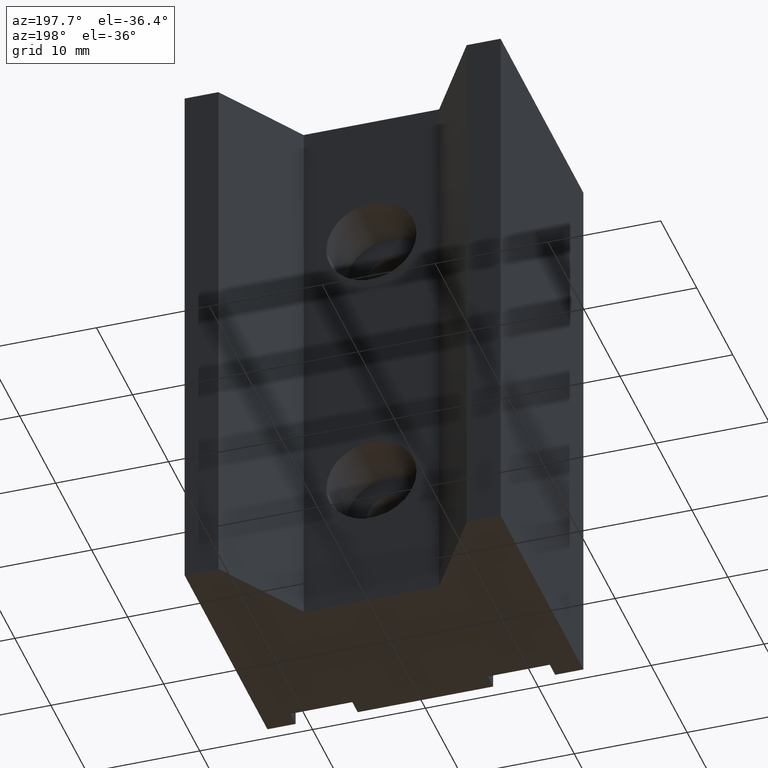
[diagram: clean part render]
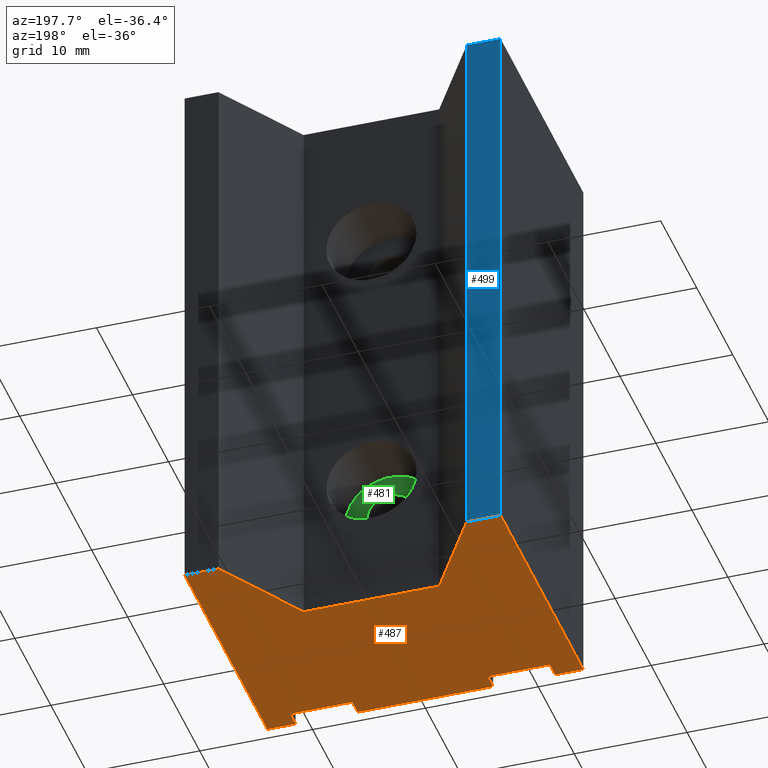
[diagram: same view with three faces highlighted in distinct colors, each labeled with its STEP entity id]
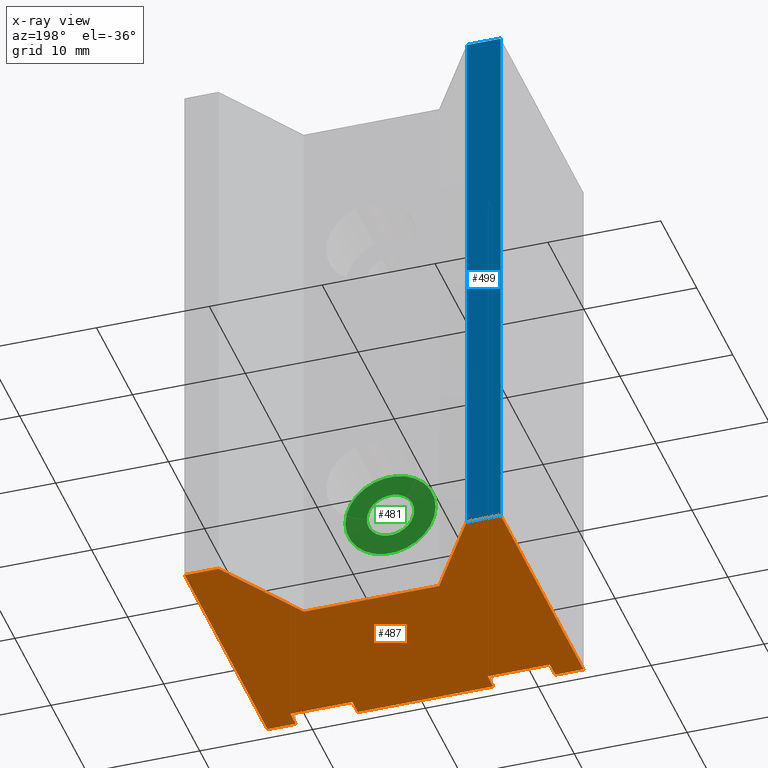
[diagram: x-ray of the same camera — body ghosted, the three highlighted faces saturated]
A machine part, auxiliary view with three faces highlighted in distinct colors.
The next image is the same camera in x-ray (body ghosted, the three faces saturated) — at least one of them is partly hidden behind the body in this view.
Their STEP definitions:

[orange] entity #487 — the highlighted planar face has unit normal (0, 0, -1).
#27=PLANE('',#550);
#55=FACE_OUTER_BOUND('',#87,.T.);
#87=EDGE_LOOP('',(#371,#372,#373,#374,#375,#376,#377,#378,#379,#380,#381,
#382,#383,#384,#385,#386));
#115=LINE('',#748,#169);
#116=LINE('',#750,#170);
#117=LINE('',#752,#171);
#118=LINE('',#754,#172);
#119=LINE('',#756,#173);
#120=LINE('',#758,#174);
#121=LINE('',#760,#175);
#122=LINE('',#762,#176);
#123=LINE('',#764,#177);
#124=LINE('',#766,#178);
#125=LINE('',#768,#179);
#126=LINE('',#770,#180);
#127=LINE('',#772,#181);
#128=LINE('',#774,#182);
#129=LINE('',#776,#183);
#130=LINE('',#777,#184);
#169=VECTOR('',#622,10.);
#170=VECTOR('',#623,10.);
#171=VECTOR('',#624,10.);
#172=VECTOR('',#625,10.);
#173=VECTOR('',#626,10.);
#174=VECTOR('',#627,10.);
#175=VECTOR('',#628,10.);
#176=VECTOR('',#629,10.);
#177=VECTOR('',#630,10.);
#178=VECTOR('',#631,10.);
#179=VECTOR('',#632,10.);
#180=VECTOR('',#633,10.);
#181=VECTOR('',#634,10.);
#182=VECTOR('',#635,10.);
#183=VECTOR('',#636,10.);
#184=VECTOR('',#637,10.);
#241=VERTEX_POINT('',#746);
#242=VERTEX_POINT('',#747);
#243=VERTEX_POINT('',#749);
#244=VERTEX_POINT('',#751);
#245=VERTEX_POINT('',#753);
#246=VERTEX_POINT('',#755);
#247=VERTEX_POINT('',#757);
#248=VERTEX_POINT('',#759);
#249=VERTEX_POINT('',#761);
#250=VERTEX_POINT('',#763);
#251=VERTEX_POINT('',#765);
#252=VERTEX_POINT('',#767);
#253=VERTEX_POINT('',#769);
#254=VERTEX_POINT('',#771);
#255=VERTEX_POINT('',#773);
#256=VERTEX_POINT('',#775);
#291=EDGE_CURVE('',#241,#242,#115,.T.);
#292=EDGE_CURVE('',#242,#243,#116,.T.);
#293=EDGE_CURVE('',#243,#244,#117,.T.);
#294=EDGE_CURVE('',#244,#245,#118,.T.);
#295=EDGE_CURVE('',#245,#246,#119,.T.);
#296=EDGE_CURVE('',#246,#247,#120,.T.);
#297=EDGE_CURVE('',#247,#248,#121,.T.);
#298=EDGE_CURVE('',#248,#249,#122,.T.);
#299=EDGE_CURVE('',#249,#250,#123,.T.);
#300=EDGE_CURVE('',#250,#251,#124,.T.);
#301=EDGE_CURVE('',#251,#252,#125,.T.);
#302=EDGE_CURVE('',#252,#253,#126,.T.);
#303=EDGE_CURVE('',#253,#254,#127,.T.);
#304=EDGE_CURVE('',#254,#255,#128,.T.);
#305=EDGE_CURVE('',#255,#256,#129,.T.);
#306=EDGE_CURVE('',#256,#241,#130,.T.);
#371=ORIENTED_EDGE('',*,*,#291,.T.);
#372=ORIENTED_EDGE('',*,*,#292,.T.);
#373=ORIENTED_EDGE('',*,*,#293,.T.);
#374=ORIENTED_EDGE('',*,*,#294,.T.);
#375=ORIENTED_EDGE('',*,*,#295,.T.);
#376=ORIENTED_EDGE('',*,*,#296,.T.);
#377=ORIENTED_EDGE('',*,*,#297,.T.);
#378=ORIENTED_EDGE('',*,*,#298,.T.);
#379=ORIENTED_EDGE('',*,*,#299,.T.);
#380=ORIENTED_EDGE('',*,*,#300,.T.);
#381=ORIENTED_EDGE('',*,*,#301,.T.);
#382=ORIENTED_EDGE('',*,*,#302,.T.);
#383=ORIENTED_EDGE('',*,*,#303,.T.);
#384=ORIENTED_EDGE('',*,*,#304,.T.);
#385=ORIENTED_EDGE('',*,*,#305,.T.);
#386=ORIENTED_EDGE('',*,*,#306,.T.);
#487=ADVANCED_FACE('',(#55),#27,.T.);
#550=AXIS2_PLACEMENT_3D('',#745,#620,#621);
#620=DIRECTION('center_axis',(0.,0.,-1.));
#621=DIRECTION('ref_axis',(-1.,0.,0.));
#622=DIRECTION('',(1.,-4.44089209850064E-15,0.));
#623=DIRECTION('',(6.75787928032704E-16,-1.,0.));
#624=DIRECTION('',(-1.,-5.77315972805082E-15,0.));
#625=DIRECTION('',(0.,1.,0.));
#626=DIRECTION('',(-1.,-2.01858731750028E-16,0.));
#627=DIRECTION('',(7.40148683083425E-16,-1.,0.));
#628=DIRECTION('',(-1.,-4.62592926927148E-16,0.));
#629=DIRECTION('',(-7.40148683083424E-16,1.,0.));
#630=DIRECTION('',(-1.,-2.52323414687536E-16,0.));
#631=DIRECTION('',(1.48029736616685E-15,-1.,0.));
#632=DIRECTION('',(-1.,-8.88178419700126E-16,0.));
#633=DIRECTION('',(-9.65411325761005E-17,1.,0.));
#634=DIRECTION('',(1.,5.92118946466752E-15,0.));
#635=DIRECTION('',(0.529998940003179,-0.847998304005088,0.));
#636=DIRECTION('',(1.,3.70074341541719E-16,0.));
#637=DIRECTION('',(0.529998940003179,0.847998304005089,0.));
#745=CARTESIAN_POINT('Origin',(0.,11.5,-25.));
#746=CARTESIAN_POINT('',(11.,23.,-25.));
#747=CARTESIAN_POINT('',(14.,23.,-25.));
#748=CARTESIAN_POINT('',(14.,23.,-25.));
#749=CARTESIAN_POINT('',(14.,4.44089209850063E-15,-25.));
#750=CARTESIAN_POINT('',(14.,4.44089209850063E-15,-25.));
#751=CARTESIAN_POINT('',(11.5,-8.88178419700125E-15,-25.));
#752=CARTESIAN_POINT('',(11.5,-8.88178419700125E-15,-25.));
#753=CARTESIAN_POINT('',(11.5,1.50000000000003,-25.));
#754=CARTESIAN_POINT('',(11.5,1.50000000000003,-25.));
#755=CARTESIAN_POINT('',(6.,1.50000000000003,-25.));
#756=CARTESIAN_POINT('',(6.,1.50000000000003,-25.));
#757=CARTESIAN_POINT('',(6.,0.,-25.));
#758=CARTESIAN_POINT('',(6.,-1.11022302462516E-15,-25.));
#759=CARTESIAN_POINT('',(-6.,-4.44089209850063E-15,-25.));
#760=CARTESIAN_POINT('',(-6.,-6.66133814775094E-15,-25.));
#761=CARTESIAN_POINT('',(-6.,1.50000000000002,-25.));
#762=CARTESIAN_POINT('',(-6.,1.50000000000002,-25.));
#763=CARTESIAN_POINT('',(-11.5,1.50000000000002,-25.));
#764=CARTESIAN_POINT('',(-11.5,1.50000000000002,-25.));
#765=CARTESIAN_POINT('',(-11.5,-4.44089209850063E-15,-25.));
#766=CARTESIAN_POINT('',(-11.5,-4.44089209850063E-15,-25.));
#767=CARTESIAN_POINT('',(-14.,-4.44089209850063E-15,-25.));
#768=CARTESIAN_POINT('',(-14.,-6.66133814775094E-15,-25.));
#769=CARTESIAN_POINT('',(-14.,23.,-25.));
#770=CARTESIAN_POINT('',(-14.,23.,-25.));
#771=CARTESIAN_POINT('',(-11.,23.,-25.));
#772=CARTESIAN_POINT('',(-11.,23.,-25.));
#773=CARTESIAN_POINT('',(-6.00000000000001,15.,-25.));
#774=CARTESIAN_POINT('',(-6.00000000000001,15.,-25.));
#775=CARTESIAN_POINT('',(6.,15.,-25.));
#776=CARTESIAN_POINT('',(6.,15.,-25.));
#777=CARTESIAN_POINT('',(11.,23.,-25.));

[blue] entity #499 — the highlighted planar face has unit normal (-0, 1, 0).
#39=PLANE('',#562);
#67=FACE_OUTER_BOUND('',#101,.T.);
#101=EDGE_LOOP('',(#433,#434,#435,#436));
#127=LINE('',#772,#181);
#153=LINE('',#823,#207);
#154=LINE('',#826,#208);
#155=LINE('',#827,#209);
#181=VECTOR('',#634,10.);
#207=VECTOR('',#682,10.);
#208=VECTOR('',#685,10.);
#209=VECTOR('',#686,10.);
#253=VERTEX_POINT('',#769);
#254=VERTEX_POINT('',#771);
#268=VERTEX_POINT('',#821);
#269=VERTEX_POINT('',#825);
#303=EDGE_CURVE('',#253,#254,#127,.T.);
#329=EDGE_CURVE('',#253,#268,#153,.T.);
#330=EDGE_CURVE('',#269,#268,#154,.T.);
#331=EDGE_CURVE('',#254,#269,#155,.T.);
#433=ORIENTED_EDGE('',*,*,#329,.T.);
#434=ORIENTED_EDGE('',*,*,#330,.F.);
#435=ORIENTED_EDGE('',*,*,#331,.F.);
#436=ORIENTED_EDGE('',*,*,#303,.F.);
#499=ADVANCED_FACE('',(#67),#39,.T.);
#562=AXIS2_PLACEMENT_3D('',#824,#683,#684);
#634=DIRECTION('',(1.,5.92118946466752E-15,0.));
#682=DIRECTION('',(0.,0.,1.));
#683=DIRECTION('center_axis',(-5.92118946466752E-15,1.,0.));
#684=DIRECTION('ref_axis',(-1.,-5.92118946466752E-15,0.));
#685=DIRECTION('',(-1.,-5.92118946466752E-15,0.));
#686=DIRECTION('',(0.,0.,1.));
#769=CARTESIAN_POINT('',(-14.,23.,-25.));
#771=CARTESIAN_POINT('',(-11.,23.,-25.));
#772=CARTESIAN_POINT('',(-11.,23.,-25.));
#821=CARTESIAN_POINT('',(-14.,23.,25.));
#823=CARTESIAN_POINT('',(-14.,23.,0.));
#824=CARTESIAN_POINT('Origin',(-11.,23.,0.));
#825=CARTESIAN_POINT('',(-11.,23.,25.));
#826=CARTESIAN_POINT('',(-11.,23.,25.));
#827=CARTESIAN_POINT('',(-11.,23.,0.));

[green] entity #481 — the highlighted planar face has unit normal (-0, 1, 0).
#17=FACE_BOUND('',#80,.T.);
#25=PLANE('',#538);
#49=FACE_OUTER_BOUND('',#79,.T.);
#79=EDGE_LOOP('',(#351));
#80=EDGE_LOOP('',(#352));
#223=CIRCLE('',#539,4.);
#224=CIRCLE('',#540,2.1);
#235=VERTEX_POINT('',#724);
#236=VERTEX_POINT('',#726);
#281=EDGE_CURVE('',#235,#235,#223,.T.);
#282=EDGE_CURVE('',#236,#236,#224,.T.);
#351=ORIENTED_EDGE('',*,*,#281,.T.);
#352=ORIENTED_EDGE('',*,*,#282,.F.);
#481=ADVANCED_FACE('',(#49,#17),#25,.T.);
#538=AXIS2_PLACEMENT_3D('',#723,#592,#593);
#539=AXIS2_PLACEMENT_3D('',#725,#594,#595);
#540=AXIS2_PLACEMENT_3D('',#727,#596,#597);
#592=DIRECTION('center_axis',(-3.70074341541719E-16,1.,0.));
#593=DIRECTION('ref_axis',(1.,3.70074341541719E-16,0.));
#594=DIRECTION('center_axis',(-3.70074341541719E-16,1.,0.));
#595=DIRECTION('ref_axis',(1.,3.70074341541719E-16,0.));
#596=DIRECTION('center_axis',(-3.70074341541719E-16,1.,0.));
#597=DIRECTION('ref_axis',(1.,3.70074341541719E-16,0.));
#723=CARTESIAN_POINT('Origin',(-1.13612822853308E-14,9.70000000000001,-12.5));
#724=CARTESIAN_POINT('',(-4.00000000000001,9.7,-12.5));
#725=CARTESIAN_POINT('Origin',(-1.13612822853308E-14,9.70000000000001,-12.5));
#726=CARTESIAN_POINT('',(-2.10000000000001,9.7,-12.5));
#727=CARTESIAN_POINT('Origin',(-1.13612822853308E-14,9.7,-12.5));